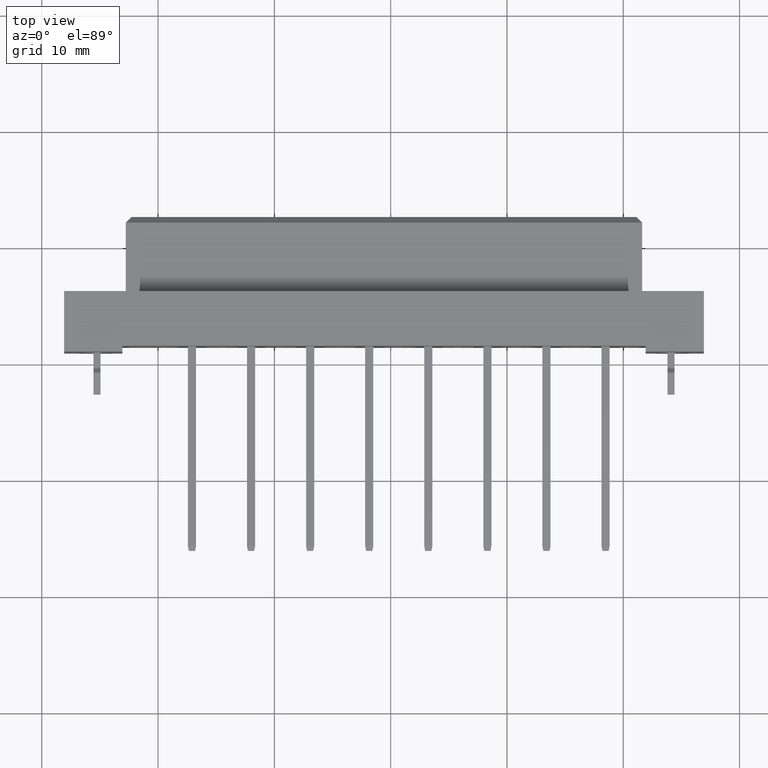
[diagram: clean part render]
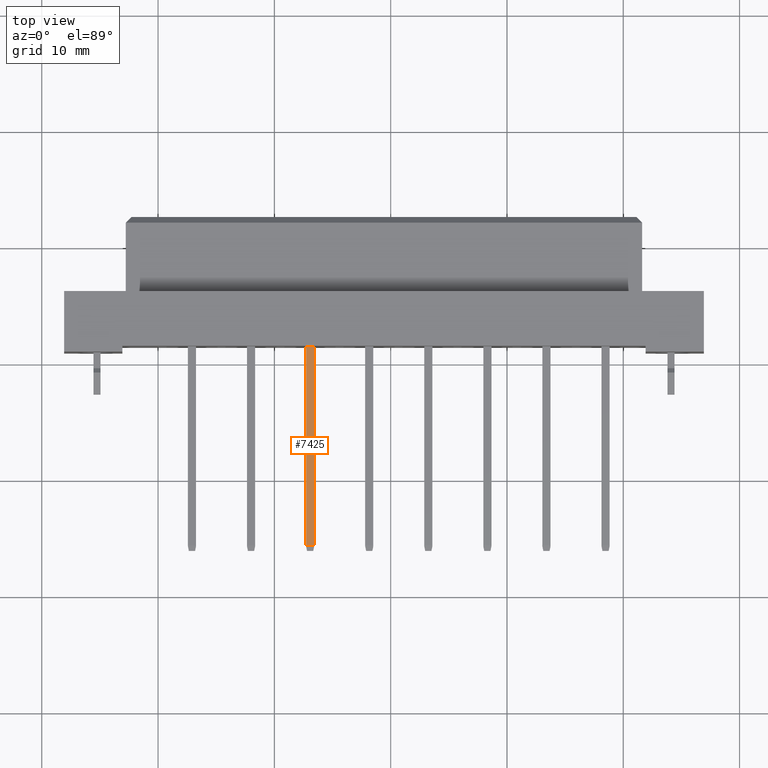
[diagram: same view with one face highlighted and labeled with its STEP entity id]
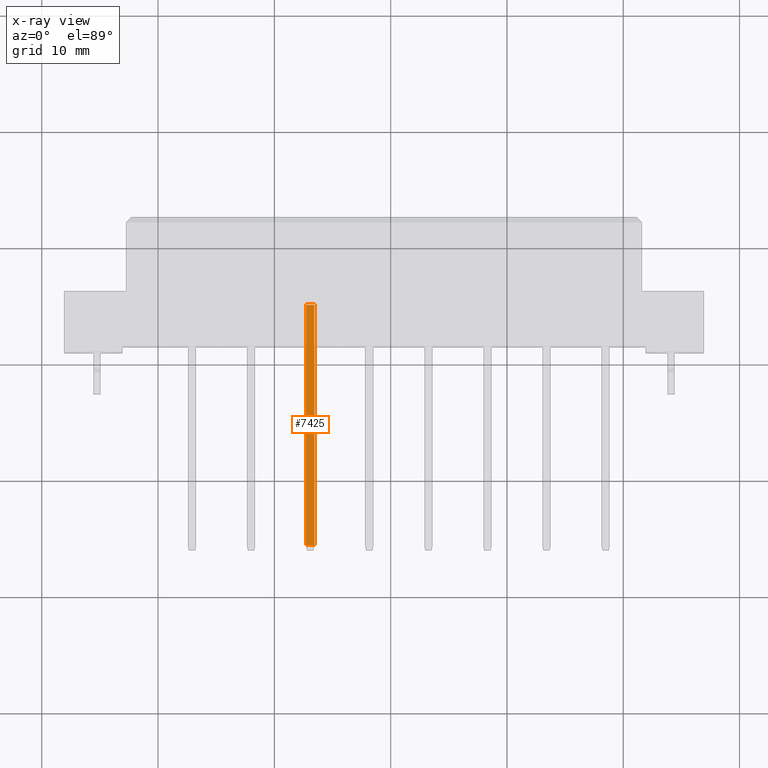
[diagram: x-ray of the same camera — body ghosted, the highlighted face saturated]
A machine part, top view. The second image highlights one B-rep face of the part: STEP entity #7425.
The next image is the same camera in x-ray: the body ghosted, the highlighted face saturated — about 0% of this face is hidden behind the body in this view.
In plain terms, the highlighted planar face has unit normal (0, -0, 1).
Its self-contained STEP definition (entity closure, byte-faithful):
#89 = CARTESIAN_POINT ( 'NONE',  ( 20.65999999999999304, -0.1499999999999999944, 0.3499999999999999778 ) ) ;
#368 = EDGE_CURVE ( 'NONE', #535, #2059, #4593, .T. ) ;
#535 = VERTEX_POINT ( 'NONE', #4338 ) ;
#624 = DIRECTION ( 'NONE',  ( 1.000000000000000000, 0.0000000000000000000, 0.0000000000000000000 ) ) ;
#2059 = VERTEX_POINT ( 'NONE', #89 ) ;
#2895 = DIRECTION ( 'NONE',  ( -0.0000000000000000000, -0.0000000000000000000, 1.000000000000000000 ) ) ;
#3279 = EDGE_CURVE ( 'NONE', #12334, #8492, #3581, .T. ) ;
#3397 = CARTESIAN_POINT ( 'NONE',  ( 0.0000000000000000000, -0.1499999999999999944, 0.3499999999999999778 ) ) ;
#3581 = LINE ( 'NONE', #10380, #11844 ) ;
#4248 = LINE ( 'NONE', #9249, #13162 ) ;
#4338 = CARTESIAN_POINT ( 'NONE',  ( 0.0000000000000000000, -0.1499999999999999944, 0.3499999999999999778 ) ) ;
#4593 = LINE ( 'NONE', #3397, #20895 ) ;
#6650 = ORIENTED_EDGE ( 'NONE', *, *, #368, .F. ) ;
#6655 = CARTESIAN_POINT ( 'NONE',  ( 0.0000000000000000000, -0.1499999999999999944, -0.3499999999999999778 ) ) ;
#6672 = CARTESIAN_POINT ( 'NONE',  ( 0.0000000000000000000, -0.1499999999999999944, -0.3499999999999999778 ) ) ;
#6822 = EDGE_CURVE ( 'NONE', #8492, #535, #12560, .T. ) ;
#7425 = ADVANCED_FACE ( 'NONE', ( #14744 ), #17893, .T. ) ;
#8330 = ORIENTED_EDGE ( 'NONE', *, *, #16266, .T. ) ;
#8492 = VERTEX_POINT ( 'NONE', #6672 ) ;
#9249 = CARTESIAN_POINT ( 'NONE',  ( 20.65999999999999304, -0.1499999999999999944, 0.3499999999999999778 ) ) ;
#10282 = DIRECTION ( 'NONE',  ( -1.000000000000000000, -0.0000000000000000000, -0.0000000000000000000 ) ) ;
#10380 = CARTESIAN_POINT ( 'NONE',  ( 0.0000000000000000000, -0.1499999999999999944, -0.3499999999999999778 ) ) ;
#10582 = VECTOR ( 'NONE', #2895, 1000.000000000000000 ) ;
#11550 = DIRECTION ( 'NONE',  ( 0.0000000000000000000, -0.0000000000000000000, -1.000000000000000000 ) ) ;
#11844 = VECTOR ( 'NONE', #10282, 1000.000000000000000 ) ;
#12334 = VERTEX_POINT ( 'NONE', #17356 ) ;
#12422 = DIRECTION ( 'NONE',  ( 0.0000000000000000000, 0.0000000000000000000, 1.000000000000000000 ) ) ;
#12560 = LINE ( 'NONE', #19009, #10582 ) ;
#13162 = VECTOR ( 'NONE', #12422, 1000.000000000000000 ) ;
#13444 = DIRECTION ( 'NONE',  ( 0.0000000000000000000, -1.000000000000000000, 0.0000000000000000000 ) ) ;
#14666 = AXIS2_PLACEMENT_3D ( 'NONE', #6655, #13444, #11550 ) ;
#14744 = FACE_OUTER_BOUND ( 'NONE', #20036, .T. ) ;
#16266 = EDGE_CURVE ( 'NONE', #12334, #2059, #4248, .T. ) ;
#16696 = ORIENTED_EDGE ( 'NONE', *, *, #3279, .F. ) ;
#17356 = CARTESIAN_POINT ( 'NONE',  ( 20.65999999999999304, -0.1499999999999999944, -0.3499999999999999778 ) ) ;
#17893 = PLANE ( 'NONE',  #14666 ) ;
#17962 = ORIENTED_EDGE ( 'NONE', *, *, #6822, .F. ) ;
#19009 = CARTESIAN_POINT ( 'NONE',  ( 0.0000000000000000000, -0.1499999999999999944, 0.3499999999999999778 ) ) ;
#20036 = EDGE_LOOP ( 'NONE', ( #16696, #8330, #6650, #17962 ) ) ;
#20895 = VECTOR ( 'NONE', #624, 1000.000000000000000 ) ;